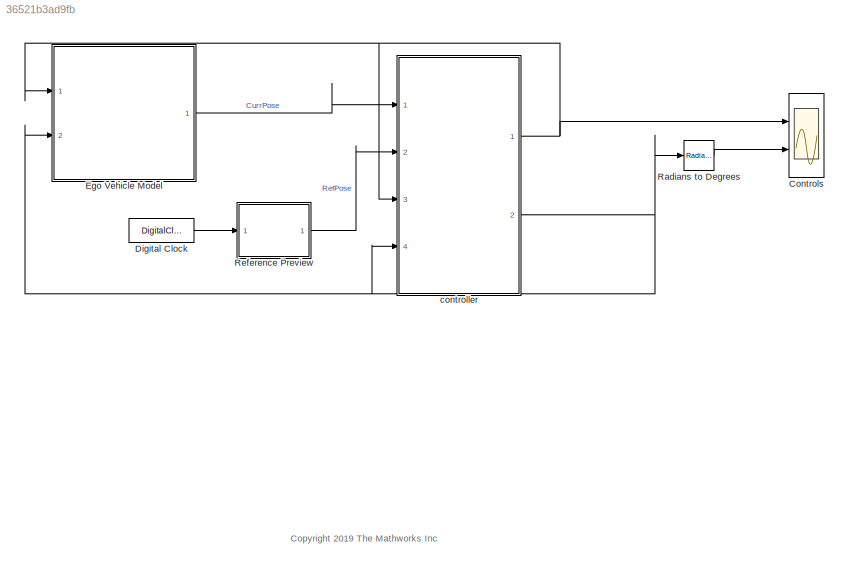
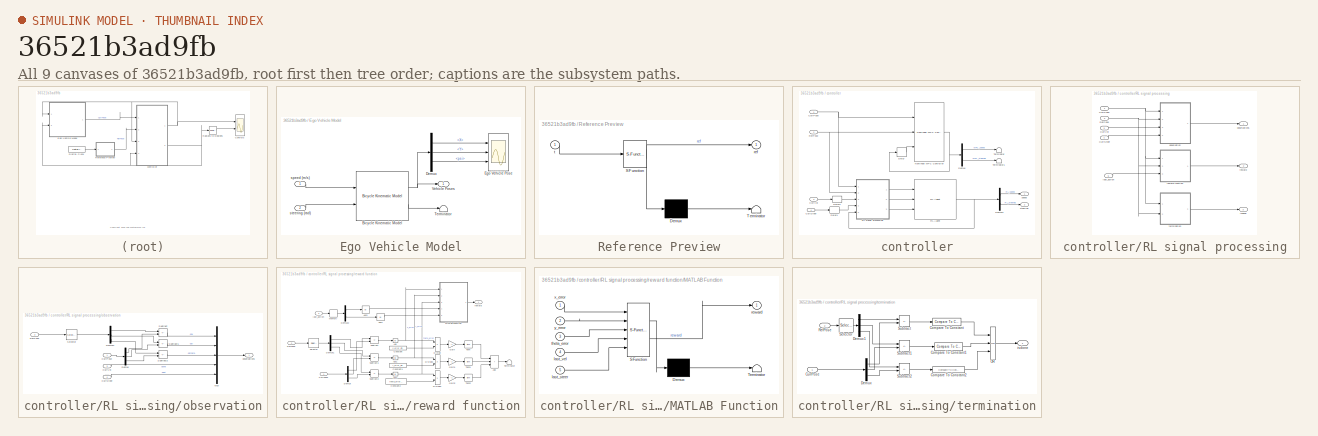
[diagram: thumbnail index - all 9 canvases of the model, root first then tree order]
MODEL slx_36521b3ad9fb
KIND model
CONFIG AbsTol = auto
CONFIG EnableMultiTasking = off
CONFIG FixedStep = Ts
CONFIG MaxStep = auto
CONFIG MinStep = auto
CONFIG RelTol = 1e-3
CONFIG SampleTimeConstraint = Unconstrained
CONFIG SolverName = FixedStepAuto
CONFIG StartTime = 0.0
CONFIG StopTime = T
BLOCK [Scope] Controls
  Floating = off
  NumInputPorts = 2
  Ports = [2]
  ScopeSpecificationString = Simulink.scopes.TimeScopeBlockCfg('CurrentConfiguration', extmgr.ConfigurationSet(extmgr.Configuration('Core','General UI',true),extmgr.Configuration('Core','Source UI',true),extmgr.Configuration('Sources','WiredSimulink',true),extmgr.Configuration('Visuals','Time Domain',true,'SerializedDisplays',{struct('MinYLimReal','-1.07173','MaxYLimReal','7.3413','YLabelReal','','MinYLimMag','0.00000','MaxYL...<+1979ch>
BLOCK [DigitalClock] Digital Clock
  SampleTime = Ts
BLOCK [SubSystem] Ego Vehicle Model
  Ports = [2, 1]
  RequestExecContextInheritance = off
BLOCK [Reference] Ego Vehicle Model/Bicycle Kinematic Model  REF=robotmobilelib/Bicycle Kinematic Model
  Ports = [2, 2]
  SourceBlock = robotmobilelib/Bicycle Kinematic Model
  SourceProductBaseCode = RO
  SourceType = Bicycle Kinematic Model
BLOCK [Demux] Ego Vehicle Model/Demux
  Outputs = 3
  Ports = [1, 3]
BLOCK [Scope] Ego Vehicle Model/Ego Vehicle Pose
  Floating = off
  NumInputPorts = 3
  Ports = [3]
  ScopeSpecificationString = Simulink.scopes.TimeScopeBlockCfg('CurrentConfiguration', extmgr.ConfigurationSet(extmgr.Configuration('Core','General UI',true),extmgr.Configuration('Core','Source UI',true),extmgr.Configuration('Sources','WiredSimulink',true,'DataLoggingVariableName','ScopeData1'),extmgr.Configuration('Visuals','Time Domain',true,'SerializedDisplays',{struct('MinYLimReal','0.01484','MaxYLimReal','39.86643','YLab...<+2745ch>
BLOCK [Terminator] Ego Vehicle Model/Terminator
BLOCK [Outport] Ego Vehicle Model/Vehicle Poses
BLOCK [Inport] Ego Vehicle Model/speed (m//s)
BLOCK [Inport] Ego Vehicle Model/steering (rad)
  Port = 2
BLOCK [Reference] Radians to Degrees  REF=simulink_extras/Transformations/Radians
to Degrees
  Ports = [1, 1]
  SourceBlock = simulink_extras/Transformations/Radians\nto Degrees
  SourceProductBaseCode = SL
  SourceType = RadiansToDegrees
BLOCK [SubSystem] Reference Preview
  ErrorFcn = Stateflow.Translate.translate
  PermitHierarchicalResolution = ExplicitOnly
  Ports = [1, 1]
  RequestExecContextInheritance = off
  SFBlockType = MATLAB Function
  TreatAsAtomicUnit = on
BLOCK [Demux] Reference Preview/ Demux 
  Outputs = 1
  Ports = [1, 1]
BLOCK [S-Function] Reference Preview/ SFunction 
  EnableBusSupport = on
  FunctionName = sf_sfun
  Parameters = Ts,info,pTracking
  PortCounts = [1 2]
  Ports = [1, 2]
  SFcnIsStateOwnerBlock = off
  SFunctionDeploymentMode = off
  Tag = Stateflow S-Function 1
BLOCK [Terminator] Reference Preview/ Terminator 
BLOCK [Outport] Reference Preview/ref
  VectorParamsAs1DForOutWhenUnconnected = off
BLOCK [Inport] Reference Preview/t
BLOCK [SubSystem] controller
  Ports = [4, 2]
  RequestExecContextInheritance = off
BLOCK [Inport] controller/CurrPose
BLOCK [Inport] controller/CurrSteer
  Port = 4
BLOCK [Inport] controller/CurrVel
  Port = 3
BLOCK [Delay] controller/Delay
  DelayLength = 1
  InputPortMap = u0
  Ports = [1, 1]
BLOCK [Delay] controller/Delay1
  DelayLength = 1
  InputPortMap = u0
  Ports = [1, 1]
BLOCK [Delay] controller/Delay2
  DelayLength = 1
  InputPortMap = u0
  Ports = [1, 1]
BLOCK [Demux] controller/Demux
  Outputs = [1 1]
  Ports = [1, 2]
BLOCK [Demux] controller/Demux1
  Outputs = [1 1]
  Ports = [1, 2]
BLOCK [Reference] controller/Nonlinear MPC Controller  REF=mpclib/Nonlinear MPC Controller  (lib defined in mdl_ae329e0e0455)
  Ports = [3, 1]
  SCDEnableBlockLinearizationSpecification = on
  SourceBlock = mpclib/Nonlinear MPC Controller
  SourceProductBaseCode = MP
  SourceType = NonlinearMPC
BLOCK [Reference] controller/RL Agent  REF=rllib/RL Agent
  Ports = [3, 1]
  SourceBlock = rllib/RL Agent
  SourceProductBaseCode = RL
  SourceType = RL Agent
BLOCK [SubSystem] controller/RL signal processing
  Ports = [5, 3]
  RequestExecContextInheritance = off
BLOCK [Inport] controller/RL signal processing/CurrPose
BLOCK [Inport] controller/RL signal processing/CurrSteer
  Port = 4
BLOCK [Inport] controller/RL signal processing/CurrVel
  Port = 3
BLOCK [Inport] controller/RL signal processing/RefPose
  Port = 2
BLOCK [Outport] controller/RL signal processing/isdone
  Port = 3
BLOCK [Inport] controller/RL signal processing/last_action
  Port = 5
BLOCK [SubSystem] controller/RL signal processing/observation
  Ports = [4, 1]
  RequestExecContextInheritance = off
BLOCK [Inport] controller/RL signal processing/observation/CurrPose
BLOCK [Inport] controller/RL signal processing/observation/CurrSteer
  Port = 4
BLOCK [Inport] controller/RL signal processing/observation/CurrVel
  Port = 3
BLOCK [Demux] controller/RL signal processing/observation/Demux
  Outputs = 3
  Ports = [1, 3]
BLOCK [Demux] controller/RL signal processing/observation/Demux1
  Outputs = 3
  Ports = [1, 3]
BLOCK [Mux] controller/RL signal processing/observation/Mux
  DisplayOption = bar
  Inputs = 5
  Ports = [5, 1]
BLOCK [Inport] controller/RL signal processing/observation/RefPose
  Port = 2
BLOCK [Selector] controller/RL signal processing/observation/Selector
  IndexOptions = Index vector (dialog),Index vector (dialog)
  Indices = 1,[1:3]
  InputPortWidth = 3
  NumberOfDimensions = 2
  OutputSizes = 1,1
  Ports = [1, 1]
BLOCK [Sum] controller/RL signal processing/observation/Subtract
  IconShape = rectangular
  Inputs = +-
  Ports = [2, 1]
BLOCK [Sum] controller/RL signal processing/observation/Subtract1
  IconShape = rectangular
  Inputs = +-
  Ports = [2, 1]
BLOCK [Sum] controller/RL signal processing/observation/Subtract2
  IconShape = rectangular
  Inputs = +-
  Ports = [2, 1]
BLOCK [Outport] controller/RL signal processing/observation/observations
BLOCK [Outport] controller/RL signal processing/observations
BLOCK [Outport] controller/RL signal processing/reward
  Port = 2
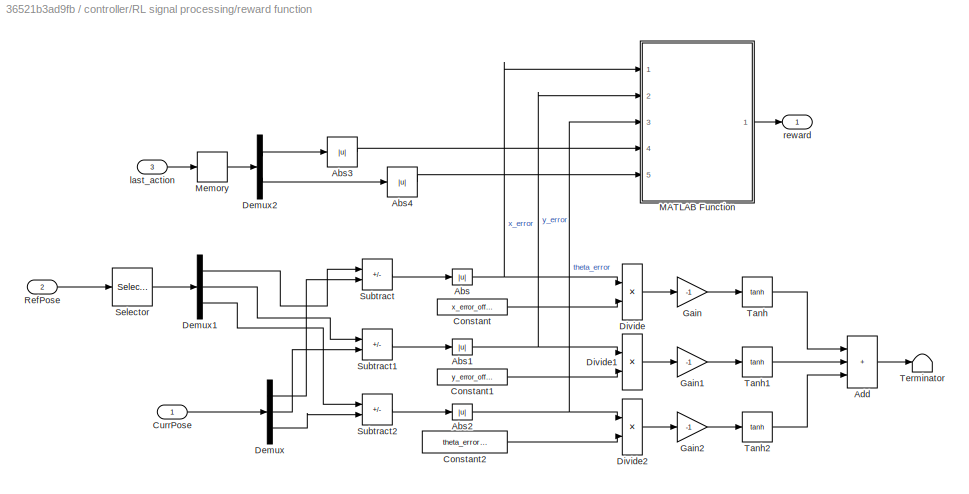
BLOCK [SubSystem] controller/RL signal processing/reward function
  Ports = [3, 1]
  RequestExecContextInheritance = off
BLOCK [Abs] controller/RL signal processing/reward function/Abs
  SaturateOnIntegerOverflow = off
BLOCK [Abs] controller/RL signal processing/reward function/Abs1
  SaturateOnIntegerOverflow = off
BLOCK [Abs] controller/RL signal processing/reward function/Abs2
  SaturateOnIntegerOverflow = off
BLOCK [Abs] controller/RL signal processing/reward function/Abs3
  SaturateOnIntegerOverflow = off
BLOCK [Abs] controller/RL signal processing/reward function/Abs4
  SaturateOnIntegerOverflow = off
BLOCK [Sum] controller/RL signal processing/reward function/Add
  IconShape = rectangular
  Inputs = +++
  Ports = [3, 1]
BLOCK [Constant] controller/RL signal processing/reward function/Constant
  Value = x_error_offset
BLOCK [Constant] controller/RL signal processing/reward function/Constant1
  Value = y_error_offset
BLOCK [Constant] controller/RL signal processing/reward function/Constant2
  Value = theta_error_offset
BLOCK [Inport] controller/RL signal processing/reward function/CurrPose
BLOCK [Demux] controller/RL signal processing/reward function/Demux
  Outputs = 3
  Ports = [1, 3]
BLOCK [Demux] controller/RL signal processing/reward function/Demux1
  Outputs = 3
  Ports = [1, 3]
BLOCK [Demux] controller/RL signal processing/reward function/Demux2
  Outputs = [1 1]
  Ports = [1, 2]
BLOCK [Product] controller/RL signal processing/reward function/Divide
  Inputs = */
  Ports = [2, 1]
BLOCK [Product] controller/RL signal processing/reward function/Divide1
  Inputs = */
  Ports = [2, 1]
BLOCK [Product] controller/RL signal processing/reward function/Divide2
  Inputs = */
  Ports = [2, 1]
BLOCK [Gain] controller/RL signal processing/reward function/Gain
  Gain = -1
BLOCK [Gain] controller/RL signal processing/reward function/Gain1
  Gain = -1
BLOCK [Gain] controller/RL signal processing/reward function/Gain2
  Gain = -1
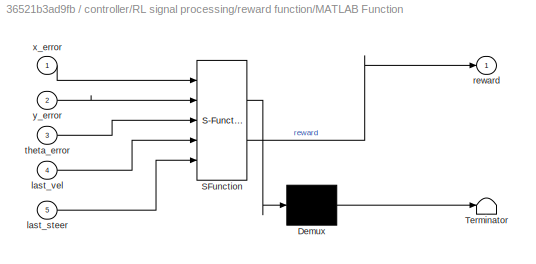
BLOCK [SubSystem] controller/RL signal processing/reward function/MATLAB Function
  ErrorFcn = Stateflow.Translate.translate
  PermitHierarchicalResolution = ExplicitOnly
  Ports = [5, 1]
  RequestExecContextInheritance = off
  SFBlockType = MATLAB Function
  TreatAsAtomicUnit = on
BLOCK [Demux] controller/RL signal processing/reward function/MATLAB Function/ Demux 
  Outputs = 1
  Ports = [1, 1]
BLOCK [S-Function] controller/RL signal processing/reward function/MATLAB Function/ SFunction 
  EnableBusSupport = on
  FunctionName = sf_sfun
  PortCounts = [5 2]
  Ports = [5, 2]
  SFcnIsStateOwnerBlock = off
  SFunctionDeploymentMode = off
  Tag = Stateflow S-Function 2
BLOCK [Terminator] controller/RL signal processing/reward function/MATLAB Function/ Terminator 
BLOCK [Inport] controller/RL signal processing/reward function/MATLAB Function/last_steer
  Port = 5
BLOCK [Inport] controller/RL signal processing/reward function/MATLAB Function/last_vel
  Port = 4
BLOCK [Outport] controller/RL signal processing/reward function/MATLAB Function/reward
BLOCK [Inport] controller/RL signal processing/reward function/MATLAB Function/theta_error
  Port = 3
BLOCK [Inport] controller/RL signal processing/reward function/MATLAB Function/x_error
BLOCK [Inport] controller/RL signal processing/reward function/MATLAB Function/y_error
  Port = 2
BLOCK [Memory] controller/RL signal processing/reward function/Memory
BLOCK [Inport] controller/RL signal processing/reward function/RefPose
  Port = 2
BLOCK [Selector] controller/RL signal processing/reward function/Selector
  IndexOptions = Index vector (dialog),Index vector (dialog)
  Indices = 1,[1:3]
  InputPortWidth = 3
  NumberOfDimensions = 2
  OutputSizes = 1,1
  Ports = [1, 1]
BLOCK [Sum] controller/RL signal processing/reward function/Subtract
  IconShape = rectangular
  Inputs = +-
  Ports = [2, 1]
BLOCK [Sum] controller/RL signal processing/reward function/Subtract1
  IconShape = rectangular
  Inputs = +-
  Ports = [2, 1]
BLOCK [Sum] controller/RL signal processing/reward function/Subtract2
  IconShape = rectangular
  Inputs = +-
  Ports = [2, 1]
BLOCK [Trigonometry] controller/RL signal processing/reward function/Tanh
  Operator = tanh
  Ports = [1, 1]
BLOCK [Trigonometry] controller/RL signal processing/reward function/Tanh1
  Operator = tanh
  Ports = [1, 1]
BLOCK [Trigonometry] controller/RL signal processing/reward function/Tanh2
  Operator = tanh
  Ports = [1, 1]
BLOCK [Terminator] controller/RL signal processing/reward function/Terminator
BLOCK [Inport] controller/RL signal processing/reward function/last_action
  Port = 3
BLOCK [Outport] controller/RL signal processing/reward function/reward
BLOCK [SubSystem] controller/RL signal processing/termination
  Ports = [2, 1]
  RequestExecContextInheritance = off
BLOCK [Reference] controller/RL signal processing/termination/Compare To Constant  REF=simulink/Logic and Bit
Operations/Compare
To Constant
  Ports = [1, 1]
  SourceBlock = simulink/Logic and Bit\nOperations/Compare\nTo Constant
  SourceProductBaseCode = SL
  SourceType = Compare To Constant
BLOCK [Reference] controller/RL signal processing/termination/Compare To Constant1  REF=simulink/Logic and Bit
Operations/Compare
To Constant
  Ports = [1, 1]
  SourceBlock = simulink/Logic and Bit\nOperations/Compare\nTo Constant
  SourceProductBaseCode = SL
  SourceType = Compare To Constant
BLOCK [Reference] controller/RL signal processing/termination/Compare To Constant2  REF=simulink/Logic and Bit
Operations/Compare
To Constant
  Ports = [1, 1]
  SourceBlock = simulink/Logic and Bit\nOperations/Compare\nTo Constant
  SourceProductBaseCode = SL
  SourceType = Compare To Constant
BLOCK [Inport] controller/RL signal processing/termination/CurrPose
BLOCK [Demux] controller/RL signal processing/termination/Demux
  Outputs = 3
  Ports = [1, 3]
BLOCK [Demux] controller/RL signal processing/termination/Demux1
  Outputs = 3
  Ports = [1, 3]
BLOCK [Logic] controller/RL signal processing/termination/OR
  AllPortsSameDT = off
  IconShape = distinctive
  Inputs = 3
  Operator = OR
  OutDataTypeStr = boolean
  Ports = [3, 1]
BLOCK [Inport] controller/RL signal processing/termination/RefPose
  Port = 2
BLOCK [Selector] controller/RL signal processing/termination/Selector
  IndexOptions = Index vector (dialog),Index vector (dialog)
  Indices = 1,[1:3]
  InputPortWidth = 3
  NumberOfDimensions = 2
  OutputSizes = 1,1
  Ports = [1, 1]
BLOCK [Sum] controller/RL signal processing/termination/Subtract
  IconShape = rectangular
  Inputs = +-
  Ports = [2, 1]
BLOCK [Sum] controller/RL signal processing/termination/Subtract1
  IconShape = rectangular
  Inputs = +-
  Ports = [2, 1]
BLOCK [Sum] controller/RL signal processing/termination/Subtract2
  IconShape = rectangular
  Inputs = +-
  Ports = [2, 1]
BLOCK [Outport] controller/RL signal processing/termination/isdone
BLOCK [Inport] controller/RefPose
  Port = 2
BLOCK [Terminator] controller/Terminator
BLOCK [Terminator] controller/Terminator1
BLOCK [Outport] controller/speed
BLOCK [Outport] controller/steering
  Port = 2
ANNOTATION (root): <copyright redacted>
LINE Digital Clock:1 -> Reference Preview:1
NET Ego Vehicle Model/Bicycle Kinematic Model:1 -> Ego Vehicle Model/Demux:1, Ego Vehicle Model/Vehicle Poses:1
LINE Ego Vehicle Model/Bicycle Kinematic Model:2 -> Ego Vehicle Model/Terminator:1
LINE Ego Vehicle Model/Demux:1 -> Ego Vehicle Model/Ego Vehicle Pose:1
LINE Ego Vehicle Model/Demux:2 -> Ego Vehicle Model/Ego Vehicle Pose:2
LINE Ego Vehicle Model/Demux:3 -> Ego Vehicle Model/Ego Vehicle Pose:3
LINE Ego Vehicle Model/speed (m//s):1 -> Ego Vehicle Model/Bicycle Kinematic Model:1
LINE Ego Vehicle Model/steering (rad):1 -> Ego Vehicle Model/Bicycle Kinematic Model:2
LINE Ego Vehicle Model:1 -> controller:1
LINE Radians to Degrees:1 -> Controls:2
LINE Reference Preview:1 -> controller:2
NET controller/CurrPose:1 -> controller/Nonlinear MPC Controller:1, controller/RL signal processing:1
LINE controller/CurrSteer:1 -> controller/Delay1:1
LINE controller/CurrVel:1 -> controller/Delay2:1
LINE controller/Delay1:1 -> controller/RL signal processing:4
LINE controller/Delay2:1 -> controller/RL signal processing:3
LINE controller/Delay:1 -> controller/Nonlinear MPC Controller:3
LINE controller/Demux1:1 -> controller/speed:1
LINE controller/Demux1:2 -> controller/steering:1
LINE controller/Demux:1 -> controller/Terminator:1
LINE controller/Demux:2 -> controller/Terminator1:1
NET controller/Nonlinear MPC Controller:1 -> controller/Delay:1, controller/Demux:1
NET controller/RL Agent:1 -> controller/Demux1:1, controller/RL signal processing:5
NET controller/RL signal processing/CurrPose:1 -> controller/RL signal processing/observation:1, controller/RL signal processing/reward function:1, controller/RL signal processing/termination:1
LINE controller/RL signal processing/CurrSteer:1 -> controller/RL signal processing/observation:4
LINE controller/RL signal processing/CurrVel:1 -> controller/RL signal processing/observation:3
NET controller/RL signal processing/RefPose:1 -> controller/RL signal processing/observation:2, controller/RL signal processing/reward function:2, controller/RL signal processing/termination:2
LINE controller/RL signal processing/last_action:1 -> controller/RL signal processing/reward function:3
LINE controller/RL signal processing/observation/CurrPose:1 -> controller/RL signal processing/observation/Demux:1
LINE controller/RL signal processing/observation/CurrSteer:1 -> controller/RL signal processing/observation/Mux:5
LINE controller/RL signal processing/observation/CurrVel:1 -> controller/RL signal processing/observation/Mux:4
LINE controller/RL signal processing/observation/Demux1:1 -> controller/RL signal processing/observation/Subtract:1
LINE controller/RL signal processing/observation/Demux1:2 -> controller/RL signal processing/observation/Subtract1:1
LINE controller/RL signal processing/observation/Demux1:3 -> controller/RL signal processing/observation/Subtract2:1
LINE controller/RL signal processing/observation/Demux:1 -> controller/RL signal processing/observation/Subtract:2
LINE controller/RL signal processing/observation/Demux:2 -> controller/RL signal processing/observation/Subtract1:2
LINE controller/RL signal processing/observation/Demux:3 -> controller/RL signal processing/observation/Subtract2:2
LINE controller/RL signal processing/observation/Mux:1 -> controller/RL signal processing/observation/observations:1
LINE controller/RL signal processing/observation/RefPose:1 -> controller/RL signal processing/observation/Selector:1
LINE controller/RL signal processing/observation/Selector:1 -> controller/RL signal processing/observation/Demux1:1
LINE controller/RL signal processing/observation/Subtract1:1 -> controller/RL signal processing/observation/Mux:2
LINE controller/RL signal processing/observation/Subtract2:1 -> controller/RL signal processing/observation/Mux:3
LINE controller/RL signal processing/observation/Subtract:1 -> controller/RL signal processing/observation/Mux:1
LINE controller/RL signal processing/observation:1 -> controller/RL signal processing/observations:1
NET controller/RL signal processing/reward function/Abs1:1 -> controller/RL signal processing/reward function/Divide1:1, controller/RL signal processing/reward function/MATLAB Function:2
NET controller/RL signal processing/reward function/Abs2:1 -> controller/RL signal processing/reward function/Divide2:1, controller/RL signal processing/reward function/MATLAB Function:3
LINE controller/RL signal processing/reward function/Abs3:1 -> controller/RL signal processing/reward function/MATLAB Function:4
LINE controller/RL signal processing/reward function/Abs4:1 -> controller/RL signal processing/reward function/MATLAB Function:5
NET controller/RL signal processing/reward function/Abs:1 -> controller/RL signal processing/reward function/Divide:1, controller/RL signal processing/reward function/MATLAB Function:1
LINE controller/RL signal processing/reward function/Add:1 -> controller/RL signal processing/reward function/Terminator:1
LINE controller/RL signal processing/reward function/Constant1:1 -> controller/RL signal processing/reward function/Divide1:2
LINE controller/RL signal processing/reward function/Constant2:1 -> controller/RL signal processing/reward function/Divide2:2
LINE controller/RL signal processing/reward function/Constant:1 -> controller/RL signal processing/reward function/Divide:2
LINE controller/RL signal processing/reward function/CurrPose:1 -> controller/RL signal processing/reward function/Demux:1
LINE controller/RL signal processing/reward function/Demux1:1 -> controller/RL signal processing/reward function/Subtract:1
LINE controller/RL signal processing/reward function/Demux1:2 -> controller/RL signal processing/reward function/Subtract1:1
LINE controller/RL signal processing/reward function/Demux1:3 -> controller/RL signal processing/reward function/Subtract2:1
LINE controller/RL signal processing/reward function/Demux2:1 -> controller/RL signal processing/reward function/Abs3:1
LINE controller/RL signal processing/reward function/Demux2:2 -> controller/RL signal processing/reward function/Abs4:1
LINE controller/RL signal processing/reward function/Demux:1 -> controller/RL signal processing/reward function/Subtract:2
LINE controller/RL signal processing/reward function/Demux:2 -> controller/RL signal processing/reward function/Subtract1:2
LINE controller/RL signal processing/reward function/Demux:3 -> controller/RL signal processing/reward function/Subtract2:2
LINE controller/RL signal processing/reward function/Divide1:1 -> controller/RL signal processing/reward function/Gain1:1
LINE controller/RL signal processing/reward function/Divide2:1 -> controller/RL signal processing/reward function/Gain2:1
LINE controller/RL signal processing/reward function/Divide:1 -> controller/RL signal processing/reward function/Gain:1
LINE controller/RL signal processing/reward function/Gain1:1 -> controller/RL signal processing/reward function/Tanh1:1
LINE controller/RL signal processing/reward function/Gain2:1 -> controller/RL signal processing/reward function/Tanh2:1
LINE controller/RL signal processing/reward function/Gain:1 -> controller/RL signal processing/reward function/Tanh:1
LINE controller/RL signal processing/reward function/MATLAB Function:1 -> controller/RL signal processing/reward function/reward:1
LINE controller/RL signal processing/reward function/Memory:1 -> controller/RL signal processing/reward function/Demux2:1
LINE controller/RL signal processing/reward function/RefPose:1 -> controller/RL signal processing/reward function/Selector:1
LINE controller/RL signal processing/reward function/Selector:1 -> controller/RL signal processing/reward function/Demux1:1
LINE controller/RL signal processing/reward function/Subtract1:1 -> controller/RL signal processing/reward function/Abs1:1
LINE controller/RL signal processing/reward function/Subtract2:1 -> controller/RL signal processing/reward function/Abs2:1
LINE controller/RL signal processing/reward function/Subtract:1 -> controller/RL signal processing/reward function/Abs:1
LINE controller/RL signal processing/reward function/Tanh1:1 -> controller/RL signal processing/reward function/Add:2
LINE controller/RL signal processing/reward function/Tanh2:1 -> controller/RL signal processing/reward function/Add:3
LINE controller/RL signal processing/reward function/Tanh:1 -> controller/RL signal processing/reward function/Add:1
LINE controller/RL signal processing/reward function/last_action:1 -> controller/RL signal processing/reward function/Memory:1
LINE controller/RL signal processing/reward function:1 -> controller/RL signal processing/reward:1
LINE controller/RL signal processing/termination/Compare To Constant1:1 -> controller/RL signal processing/termination/OR:2
LINE controller/RL signal processing/termination/Compare To Constant2:1 -> controller/RL signal processing/termination/OR:3
LINE controller/RL signal processing/termination/Compare To Constant:1 -> controller/RL signal processing/termination/OR:1
LINE controller/RL signal processing/termination/CurrPose:1 -> controller/RL signal processing/termination/Demux:1
LINE controller/RL signal processing/termination/Demux1:1 -> controller/RL signal processing/termination/Subtract:1
LINE controller/RL signal processing/termination/Demux1:2 -> controller/RL signal processing/termination/Subtract1:1
LINE controller/RL signal processing/termination/Demux1:3 -> controller/RL signal processing/termination/Subtract2:1
LINE controller/RL signal processing/termination/Demux:1 -> controller/RL signal processing/termination/Subtract:2
LINE controller/RL signal processing/termination/Demux:2 -> controller/RL signal processing/termination/Subtract1:2
LINE controller/RL signal processing/termination/Demux:3 -> controller/RL signal processing/termination/Subtract2:2
LINE controller/RL signal processing/termination/OR:1 -> controller/RL signal processing/termination/isdone:1
LINE controller/RL signal processing/termination/RefPose:1 -> controller/RL signal processing/termination/Selector:1
LINE controller/RL signal processing/termination/Selector:1 -> controller/RL signal processing/termination/Demux1:1
LINE controller/RL signal processing/termination/Subtract1:1 -> controller/RL signal processing/termination/Compare To Constant1:1
LINE controller/RL signal processing/termination/Subtract2:1 -> controller/RL signal processing/termination/Compare To Constant2:1
LINE controller/RL signal processing/termination/Subtract:1 -> controller/RL signal processing/termination/Compare To Constant:1
LINE controller/RL signal processing/termination:1 -> controller/RL signal processing/isdone:1
LINE controller/RL signal processing:1 -> controller/RL Agent:1
LINE controller/RL signal processing:2 -> controller/RL Agent:2
LINE controller/RL signal processing:3 -> controller/RL Agent:3
NET controller/RefPose:1 -> controller/Nonlinear MPC Controller:2, controller/RL signal processing:2
NET controller:1 -> Controls:1, Ego Vehicle Model:1, controller:3
NET controller:2 -> Ego Vehicle Model:2, Radians to Degrees:1, controller:4
note: NET lines group one-source signal fan-out (src -> all destinations, sorted); 1:1 wires keep LINE
CHART Reference Preview states=1 transitions=1
  STATE_LABEL 'eML_blk_kernel()'
  STATE_LABEL 'SCRIPT:\nfunction ref = fcn(t,Ts,info,pTracking)\nTend = info.Topt(end);\nT = t+(1:pTracking)*Ts;\nT = min(T,Tend);\nref = interp1(info.Topt,info.Xopt(:,1:3),T);\n'
CHART controller/RL signal processing/reward function/MATLAB Function states=1 transitions=1
  STATE_LABEL 'eML_blk_kernel()'
  STATE_LABEL 'SCRIPT:\nfunction reward = reward(x_error, y_error, theta_error, last_vel, last_steer)\n\nx_pos = 2*exp(-x_error*1.5);\ny_pos = 2*exp(-y_error*1.5);\ntheta_pos = 2*exp(-theta_error*1.5);\n\nneg_reward = -tanh(x_error) -tanh(y_pos) -tanh(theta_pos) ;\n\nreward = x_pos + y_pos + theta_pos + neg_reward - 0.01*last_vel - 0.1*last_steer;'
CHART  states=0 transitions=0
CHART  states=0 transitions=0
